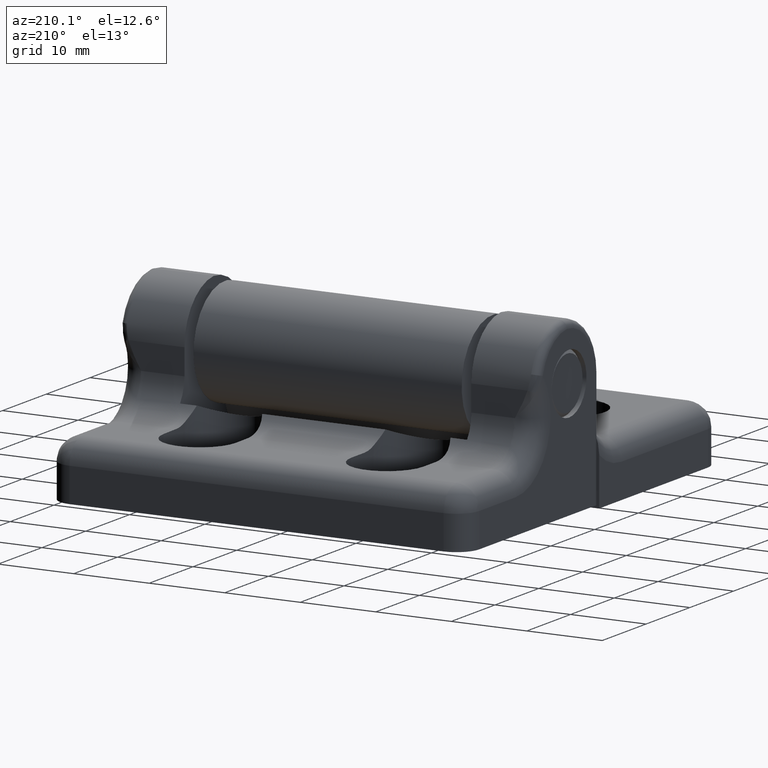
[diagram: clean part render]
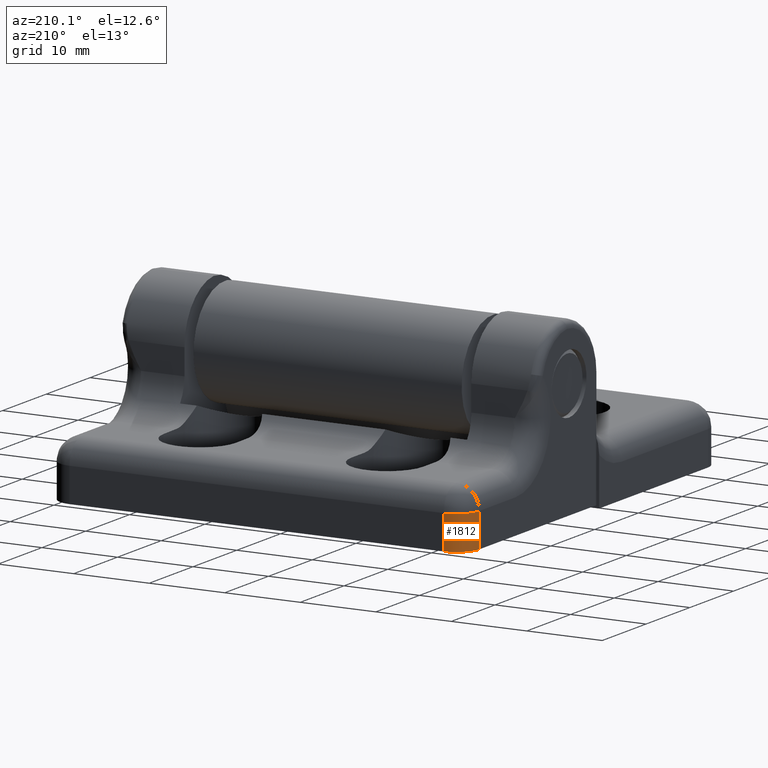
[diagram: same view with one face highlighted and labeled with its STEP entity id]
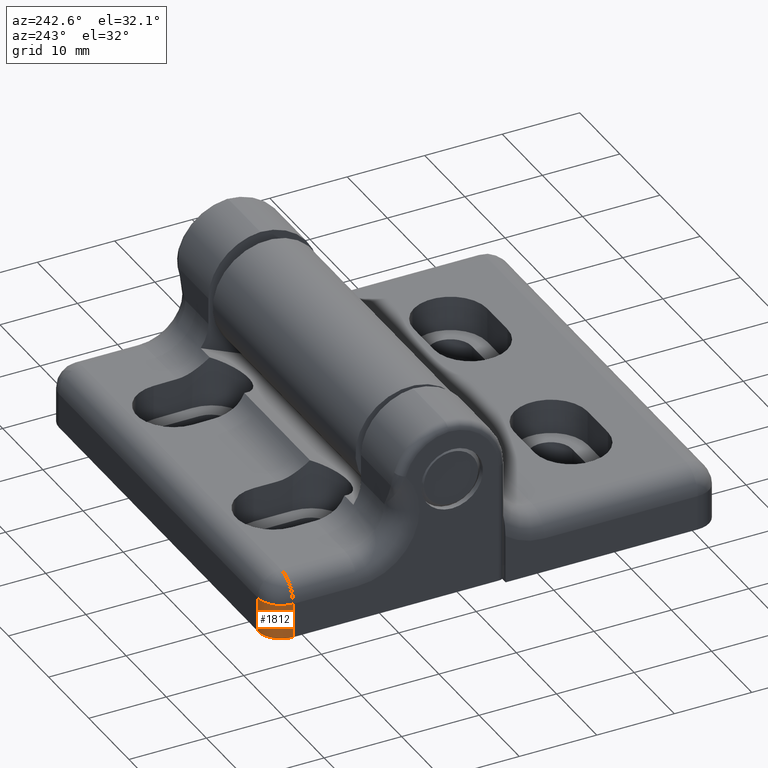
[diagram: same view with one face highlighted and labeled with its STEP entity id]
A machine part, auxiliary view. The second image highlights one B-rep face of the part: STEP entity #1812.
A second angle (auxiliary view) of the same face is appended — the face is thin or edge-on in the first view.
In plain terms, the highlighted cylindrical surface (edge-blend (fillet) strip) has radius 3 mm, axis along (0, 0, -1).
Its self-contained STEP definition (entity closure, byte-faithful):
#163=FACE_OUTER_BOUND('',#276,.T.);
#276=EDGE_LOOP('',(#1364,#1365,#1366,#1367));
#427=LINE('',#2944,#572);
#433=LINE('',#2962,#578);
#572=VECTOR('',#2304,4.5);
#578=VECTOR('',#2320,4.49999999911611);
#690=CIRCLE('',#1956,3.);
#702=CIRCLE('',#1974,3.);
#831=VERTEX_POINT('',#2917);
#832=VERTEX_POINT('',#2919);
#842=VERTEX_POINT('',#2942);
#848=VERTEX_POINT('',#2958);
#1029=EDGE_CURVE('',#831,#832,#690,.T.);
#1042=EDGE_CURVE('',#842,#831,#427,.T.);
#1051=EDGE_CURVE('',#832,#848,#433,.T.);
#1056=EDGE_CURVE('',#848,#842,#702,.T.);
#1364=ORIENTED_EDGE('',*,*,#1029,.F.);
#1365=ORIENTED_EDGE('',*,*,#1042,.F.);
#1366=ORIENTED_EDGE('',*,*,#1056,.F.);
#1367=ORIENTED_EDGE('',*,*,#1051,.F.);
#1756=CYLINDRICAL_SURFACE('',#1973,3.);
#1812=ADVANCED_FACE('',(#163),#1756,.T.);
#1956=AXIS2_PLACEMENT_3D('',#2920,#2282,#2283);
#1973=AXIS2_PLACEMENT_3D('',#2991,#2329,#2330);
#1974=AXIS2_PLACEMENT_3D('',#2992,#2331,#2332);
#2282=DIRECTION('center_axis',(0.,0.,-1.));
#2283=DIRECTION('ref_axis',(1.,0.,0.));
#2304=DIRECTION('',(0.,0.,-1.));
#2320=DIRECTION('',(0.,0.,1.));
#2329=DIRECTION('center_axis',(0.,0.,-1.));
#2330=DIRECTION('ref_axis',(0.707106781186547,-0.707106781186548,0.));
#2331=DIRECTION('center_axis',(0.,0.,1.));
#2332=DIRECTION('ref_axis',(1.,0.,0.));
#2917=CARTESIAN_POINT('',(-17.75,42.4677756572818,0.497772930929919));
#2919=CARTESIAN_POINT('',(-14.75,45.4677756572818,0.497772930929919));
#2920=CARTESIAN_POINT('Origin',(-14.75,42.4677756572818,0.497772930929919));
#2942=CARTESIAN_POINT('',(-17.75,42.4677756572818,4.99777293092992));
#2944=CARTESIAN_POINT('',(-17.75,42.4677756572818,4.99777293092992));
#2958=CARTESIAN_POINT('',(-14.7499999991161,45.4677756572818,4.99777293004603));
#2962=CARTESIAN_POINT('',(-14.75,45.4677756572818,0.497772930929919));
#2991=CARTESIAN_POINT('Origin',(-14.75,42.4677756572818,4.99777294092992));
#2992=CARTESIAN_POINT('Origin',(-14.75,42.4677756572818,4.99777293092992));